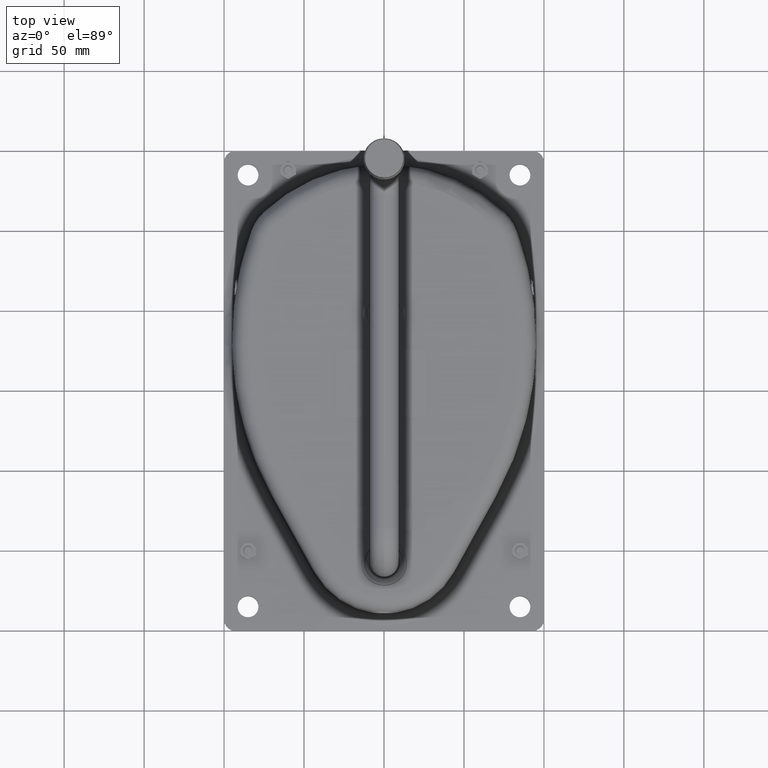
[diagram: clean part render]
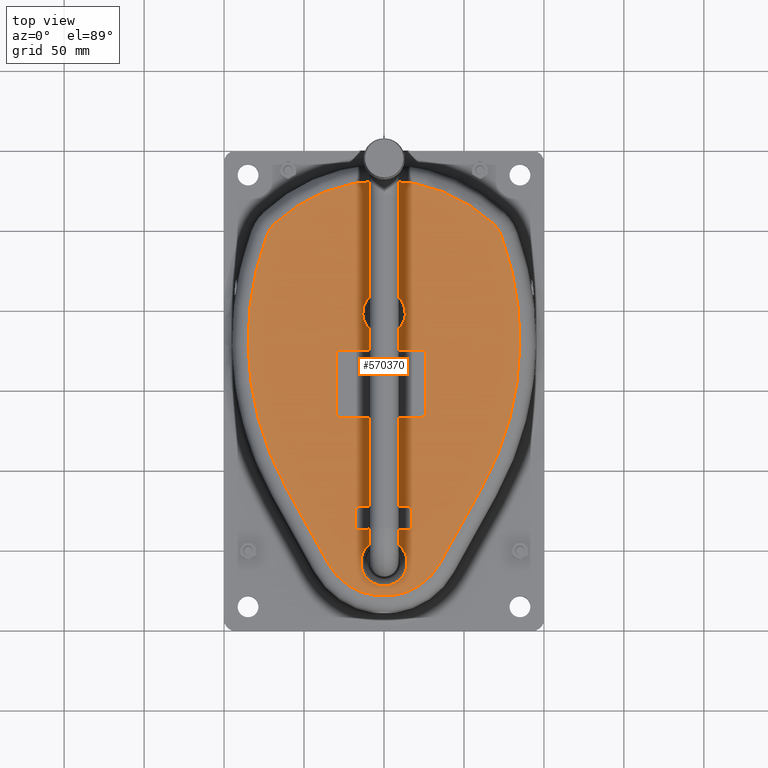
[diagram: same view with one face highlighted and labeled with its STEP entity id]
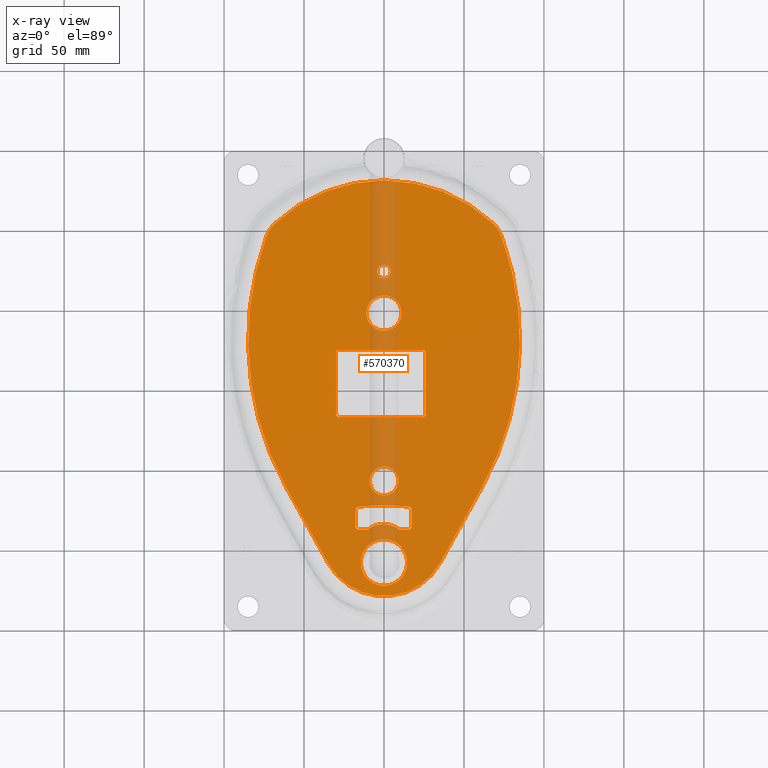
[diagram: x-ray of the same camera — body ghosted, the highlighted face saturated]
A machine part, top view. The second image highlights one B-rep face of the part: STEP entity #570370.
The next image is the same camera in x-ray: the body ghosted, the highlighted face saturated — about 8% of this face is hidden behind the body in this view.
In plain terms, the highlighted planar face has unit normal (0, 0, 1).
Its self-contained STEP definition (entity closure, byte-faithful):
#1810=CARTESIAN_POINT('',(1.84741111297626E-13,-2.8421709430404E-13,-10.
));
#1820=DIRECTION('',(0.,0.,1.));
#1830=DIRECTION('',(0.0174524064372835,0.999847695156391,0.));
#1840=AXIS2_PLACEMENT_3D('',#1810,#1820,#1830);
#1850=CIRCLE('',#1840,11.);
#1860=CARTESIAN_POINT('',(10.9983246467205,-0.191976470810405,-10.));
#1870=VERTEX_POINT('',#1860);
#1880=CARTESIAN_POINT('',(0.191976470810303,10.99832464672,-10.));
#1890=VERTEX_POINT('',#1880);
#1900=EDGE_CURVE('',#1870,#1890,#1850,.T.);
#2430=CARTESIAN_POINT('',(-0.191976470809935,-10.9983246467206,-10.));
#2440=VERTEX_POINT('',#2430);
#2470=EDGE_CURVE('',#2440,#1870,#1850,.T.);
#22490=CARTESIAN_POINT('',(1.83250267591495,104.984007991421,-10.));
#22500=DIRECTION('',(0.,0.,1.));
#22510=DIRECTION('',(0.0174524064372835,0.999847695156391,0.));
#22520=AXIS2_PLACEMENT_3D('',#22490,#22500,#22510);
#22530=CIRCLE('',#22520,9.);
#22540=CARTESIAN_POINT('',(10.8311319323225,104.826936333485,-10.));
#22550=VERTEX_POINT('',#22540);
#22560=CARTESIAN_POINT('',(1.9895743338505,113.982637247828,-10.));
#22570=VERTEX_POINT('',#22560);
#22580=EDGE_CURVE('',#22550,#22570,#22530,.T.);
#22810=CARTESIAN_POINT('',(1.6754310179794,95.9853787350133,-10.));
#22820=VERTEX_POINT('',#22810);
#22850=EDGE_CURVE('',#22820,#22550,#22530,.T.);
#28150=CARTESIAN_POINT('',(3.79559013704547,-26.0702128014249,-10.));
#28160=VERTEX_POINT('',#28150);
#28190=CARTESIAN_POINT('',(-0.453762567369196,-25.9960400740665,-10.));
#28200=DIRECTION('',(0.,-0.,-1.));
#28210=DIRECTION('',(0.999847695156391,-0.0174524064372835,0.));
#28220=AXIS2_PLACEMENT_3D('',#28190,#28200,#28210);
#28230=CIRCLE('',#28220,4.25);
#28240=CARTESIAN_POINT('',(-4.70311527178386,-25.921867346708,-10.));
#28250=VERTEX_POINT('',#28240);
#28260=EDGE_CURVE('',#28250,#28160,#28230,.T.);
#28490=CARTESIAN_POINT('',(2.46951551087579,141.478448864629,-10.));
#28500=VERTEX_POINT('',#28490);
#28530=CARTESIAN_POINT('',(2.7225754042164,155.976240444397,-10.));
#28540=DIRECTION('',(0.,0.,1.));
#28550=DIRECTION('',(0.0174524064372835,0.999847695156391,0.));
#28560=AXIS2_PLACEMENT_3D('',#28530,#28540,#28550);
#28570=CIRCLE('',#28560,14.5);
#28580=CARTESIAN_POINT('',(2.97563529755701,170.474032024164,-10.));
#28590=VERTEX_POINT('',#28580);
#28600=EDGE_CURVE('',#28500,#28590,#28570,.T.);
#42310=CARTESIAN_POINT('',(72.5701482000902,-49.5790844655635,-10.));
#42320=VERTEX_POINT('',#42310);
#42510=CARTESIAN_POINT('',(63.0928881244137,107.991579813231,-10.));
#42520=VERTEX_POINT('',#42510);
#42550=CARTESIAN_POINT('',(-104.687317081987,18.8299134935731,-10.));
#42560=DIRECTION('',(0.,-0.,-1.));
#42570=DIRECTION('',(0.999847695156391,-0.0174524064372835,0.));
#42580=AXIS2_PLACEMENT_3D('',#42550,#42560,#42570);
#42590=CIRCLE('',#42580,190.);
#42600=EDGE_CURVE('',#42520,#42320,#42590,.T.);
#42840=CARTESIAN_POINT('',(37.7131281464134,155.750011356353,-10.));
#42850=VERTEX_POINT('',#42840);
#42880=CARTESIAN_POINT('',(15.9238431743633,196.752056908134,-10.));
#42890=DIRECTION('',(-0.4692719279982,0.883053711612636,-0.));
#42900=VECTOR('',#42890,1.);
#42910=LINE('',#42880,#42900);
#42920=EDGE_CURVE('',#42520,#42850,#42910,.T.);
#51010=CARTESIAN_POINT('',(-32.2545573199754,156.971301849046,-10.));
#51020=VERTEX_POINT('',#51010);
#51110=CARTESIAN_POINT('',(-59.2856018580911,110.127704301693,-10.));
#51120=VERTEX_POINT('',#51110);
#51150=CARTESIAN_POINT('',(-9.04759503807331,197.187934983483,-10.));
#51160=DIRECTION('',(-0.499804190315523,-0.866138425047085,0.));
#51170=VECTOR('',#51160,1.);
#51180=LINE('',#51150,#51170);
#51190=EDGE_CURVE('',#51020,#51120,#51180,.T.);
#51440=CARTESIAN_POINT('',(-74.2562255214051,-47.0162205790802,-10.));
#51450=VERTEX_POINT('',#51440);
#51480=CARTESIAN_POINT('',(105.280698900855,15.1649081417436,-10.));
#51490=DIRECTION('',(0.,-0.,-1.));
#51500=DIRECTION('',(0.999847695156391,-0.0174524064372835,0.));
#51510=AXIS2_PLACEMENT_3D('',#51480,#51490,#51500);
#51520=CIRCLE('',#51510,190.);
#51530=EDGE_CURVE('',#51450,#51120,#51520,.T.);
#51680=CARTESIAN_POINT('',(-69.2711750998701,-54.8379009649985,-10.));
#51690=VERTEX_POINT('',#51680);
#51740=CARTESIAN_POINT('',(-55.3576018980093,-40.4708386084671,-10.));
#51750=DIRECTION('',(0.,-0.,-1.));
#51760=DIRECTION('',(0.999847695156391,-0.0174524064372835,0.));
#51770=AXIS2_PLACEMENT_3D('',#51740,#51750,#51760);
#51780=CIRCLE('',#51770,20.);
#51790=EDGE_CURVE('',#51690,#51450,#51780,.T.);
#52120=CARTESIAN_POINT('',(67.3151618277441,-57.2220243443774,-10.));
#52130=VERTEX_POINT('',#52120);
#52160=CARTESIAN_POINT('',(0.296690909434005,16.9974108176584,-10.));
#52170=DIRECTION('',(0.,-0.,-1.));
#52180=DIRECTION('',(0.999847695156391,-0.0174524064372835,0.));
#52190=AXIS2_PLACEMENT_3D('',#52160,#52170,#52180);
#52200=CIRCLE('',#52190,100.);
#52210=EDGE_CURVE('',#52130,#51690,#52200,.T.);
#53810=CARTESIAN_POINT('',(2.39097968190802,136.979134236425,-10.));
#53820=DIRECTION('',(0.,-0.,-1.));
#53830=DIRECTION('',(0.999847695156391,-0.0174524064372835,0.));
#53840=AXIS2_PLACEMENT_3D('',#53810,#53820,#53830);
#53850=CIRCLE('',#53840,40.);
#53860=EDGE_CURVE('',#51020,#42850,#53850,.T.);
#70370=CARTESIAN_POINT('',(-28.8959292491434,63.5139769879716,-10.));
#70380=VERTEX_POINT('',#70370);
#70410=CARTESIAN_POINT('',(-30.0045698413178,0.,-10.));
#70420=DIRECTION('',(0.0174524064372841,0.999847695156391,0.));
#70430=VECTOR('',#70420,1.);
#70440=LINE('',#70410,#70430);
#70450=CARTESIAN_POINT('',(-29.5591206937602,25.5197645720287,-10.));
#70460=VERTEX_POINT('',#70450);
#70470=EDGE_CURVE('',#70460,#70380,#70440,.T.);
#249020=CARTESIAN_POINT('',(26.4323502349978,24.5424298115408,-10.));
#249030=VERTEX_POINT('',#249020);
#249060=CARTESIAN_POINT('',(26.0039605291411,0.,-10.));
#249070=DIRECTION('',(0.0174524064372847,0.999847695156391,0.));
#249080=VECTOR('',#249070,1.);
#249090=LINE('',#249060,#249080);
#249100=CARTESIAN_POINT('',(27.0955416796146,62.5366422274836,-10.));
#249110=VERTEX_POINT('',#249100);
#249120=EDGE_CURVE('',#249030,#249110,#249090,.T.);
#249280=CARTESIAN_POINT('',(25.0958462893018,62.5715470403582,-10.));
#249290=DIRECTION('',(-1.85096894965842E-18,-1.06041940105652E-16,-1.));
#249300=DIRECTION('',(-0.0174524064372847,-0.999847695156391,
1.0605809326696E-16));
#249310=AXIS2_PLACEMENT_3D('',#249280,#249290,#249300);
#249320=CIRCLE('',#249310,2.);
#249330=CARTESIAN_POINT('',(25.1307511021764,64.571242430671,-10.));
#249340=VERTEX_POINT('',#249330);
#249350=EDGE_CURVE('',#249340,#249110,#249320,.T.);
#249550=CARTESIAN_POINT('',(0.,65.0099013228544,-10.));
#249560=DIRECTION('',(0.999847695156391,-0.0174524064372847,0.));
#249570=VECTOR('',#249560,1.);
#249580=LINE('',#249550,#249570);
#249590=CARTESIAN_POINT('',(-26.861329045956,65.4787675654098,-10.));
#249600=VERTEX_POINT('',#249590);
#249610=EDGE_CURVE('',#249600,#249340,#249580,.T.);
#249770=CARTESIAN_POINT('',(-26.8962338588306,63.479072175097,-10.));
#249780=DIRECTION('',(1.85096894965842E-18,1.06041940105652E-16,1.));
#249790=DIRECTION('',(0.0174524064372847,0.999847695156391,
-1.0605809326696E-16));
#249800=AXIS2_PLACEMENT_3D('',#249770,#249780,#249790);
#249810=CIRCLE('',#249800,2.);
#249820=EDGE_CURVE('',#249600,#70380,#249810,.T.);
#250000=CARTESIAN_POINT('',(24.3977500318104,22.5776392341026,-10.));
#250010=VERTEX_POINT('',#250000);
#250040=CARTESIAN_POINT('',(24.432654844685,24.5773346244154,-10.));
#250050=DIRECTION('',(1.85096894965842E-18,1.06041940105652E-16,1.));
#250060=DIRECTION('',(0.0174524064372847,0.999847695156391,
-1.0605809326696E-16));
#250070=AXIS2_PLACEMENT_3D('',#250040,#250050,#250060);
#250080=CIRCLE('',#250070,2.);
#250090=EDGE_CURVE('',#250010,#249030,#250080,.T.);
#250250=CARTESIAN_POINT('',(-27.5943301163219,23.4851643688414,-10.));
#250260=VERTEX_POINT('',#250250);
#250290=CARTESIAN_POINT('',(0.,23.0035035450103,-10.));
#250300=DIRECTION('',(-0.999847695156391,0.0174524064372834,0.));
#250310=VECTOR('',#250300,1.);
#250320=LINE('',#250290,#250310);
#250330=EDGE_CURVE('',#250010,#250260,#250320,.T.);
#333090=CARTESIAN_POINT('',(-27.5594253034474,25.4848597591541,-10.));
#333100=DIRECTION('',(1.85096894965842E-18,1.06041940105652E-16,1.));
#333110=DIRECTION('',(0.0174524064372847,0.999847695156391,
-1.0605809326696E-16));
#333120=AXIS2_PLACEMENT_3D('',#333090,#333100,#333110);
#333130=CIRCLE('',#333120,2.);
#333140=EDGE_CURVE('',#70460,#250260,#333130,.T.);
#333390=CARTESIAN_POINT('',(17.6100575303226,135.05964431283,-10.));
#333400=VERTEX_POINT('',#333390);
#333430=CARTESIAN_POINT('',(0.,135.367029010411,-10.));
#333440=DIRECTION('',(-0.999847695156391,0.0174524064372841,0.));
#333450=VECTOR('',#333440,1.);
#333460=LINE('',#333430,#333450);
#333470=CARTESIAN_POINT('',(12.6640866634423,135.145976555444,-10.));
#333480=VERTEX_POINT('',#333470);
#333490=EDGE_CURVE('',#333400,#333480,#333460,.T.);
#333780=CARTESIAN_POINT('',(19.5748481077608,133.025044109643,-10.));
#333790=VERTEX_POINT('',#333780);
#333820=CARTESIAN_POINT('',(17.5751527174481,133.059948922517,-10.));
#333830=DIRECTION('',(0.,-0.,-1.));
#333840=DIRECTION('',(0.999847695156391,-0.0174524064372835,0.));
#333850=AXIS2_PLACEMENT_3D('',#333820,#333830,#333840);
#333860=CIRCLE('',#333850,2.);
#333870=EDGE_CURVE('',#333400,#333790,#333860,.T.);
#334100=CARTESIAN_POINT('',(19.3948443448666,122.712635440041,-10.));
#334110=VERTEX_POINT('',#334100);
#334140=CARTESIAN_POINT('',(17.252887325748,0.,-10.));
#334150=DIRECTION('',(0.0174524064372835,0.999847695156391,0.));
#334160=VECTOR('',#334150,1.);
#334170=LINE('',#334140,#334160);
#334180=EDGE_CURVE('',#334110,#333790,#334170,.T.);
#334420=CARTESIAN_POINT('',(17.5501901616735,120.753558752476,-10.));
#334430=VERTEX_POINT('',#334420);
#334460=CARTESIAN_POINT('',(17.3951489545539,122.747540252915,-10.));
#334470=DIRECTION('',(0.,-0.,-1.));
#334480=DIRECTION('',(0.999847695156391,-0.0174524064372835,0.));
#334490=AXIS2_PLACEMENT_3D('',#334460,#334470,#334480);
#334500=CIRCLE('',#334490,2.);
#334510=EDGE_CURVE('',#334110,#334430,#334500,.T.);
#334750=CARTESIAN_POINT('',(1.85062439538235,120.331996419287,-10.));
#334760=VERTEX_POINT('',#334750);
#334790=CARTESIAN_POINT('',(5.28873967588159,284.83939569868,-10.));
#334800=DIRECTION('',(0.,-0.,-1.));
#334810=DIRECTION('',(0.999847695156391,-0.0174524064372835,0.));
#334820=AXIS2_PLACEMENT_3D('',#334790,#334800,#334810);
#334830=CIRCLE('',#334820,164.543322727942);
#334840=EDGE_CURVE('',#334430,#334760,#334830,.T.);
#335080=CARTESIAN_POINT('',(-13.826189852675,121.314152174797,-10.));
#335090=VERTEX_POINT('',#335080);
#335120=CARTESIAN_POINT('',(4.28886255199527,284.855162134308,-10.));
#335130=DIRECTION('',(0.,-0.,-1.));
#335140=DIRECTION('',(0.999847695156391,-0.0174524064372835,0.));
#335150=AXIS2_PLACEMENT_3D('',#335120,#335130,#335140);
#335160=CIRCLE('',#335150,164.541232103691);
#335170=EDGE_CURVE('',#334760,#335090,#335160,.T.);
#335410=CARTESIAN_POINT('',(-15.5996025186405,123.336214789323,-10.));
#335420=VERTEX_POINT('',#335410);
#335450=CARTESIAN_POINT('',(-13.5999071283277,123.301309976448,-10.));
#335460=DIRECTION('',(0.,-0.,-1.));
#335470=DIRECTION('',(0.999847695156391,-0.0174524064372835,0.));
#335480=AXIS2_PLACEMENT_3D('',#335450,#335460,#335470);
#335490=CIRCLE('',#335480,1.99999999999999);
#335500=EDGE_CURVE('',#335090,#335420,#335490,.T.);
#335730=CARTESIAN_POINT('',(-15.4198212227128,133.635878334948,-10.));
#335740=VERTEX_POINT('',#335730);
#335770=CARTESIAN_POINT('',(-17.7524441557887,0.,-10.));
#335780=DIRECTION('',(-0.0174524064372835,-0.999847695156391,0.));
#335790=VECTOR('',#335780,1.);
#335800=LINE('',#335770,#335790);
#335810=EDGE_CURVE('',#335740,#335420,#335800,.T.);
#336050=CARTESIAN_POINT('',(-13.3852210195255,135.600668912386,-10.));
#336060=VERTEX_POINT('',#336050);
#336090=CARTESIAN_POINT('',(-13.4201258324001,133.600973522073,-10.));
#336100=DIRECTION('',(0.,-0.,-1.));
#336110=DIRECTION('',(0.999847695156391,-0.0174524064372835,0.));
#336120=AXIS2_PLACEMENT_3D('',#336090,#336100,#336110);
#336130=CIRCLE('',#336120,2.);
#336140=EDGE_CURVE('',#335740,#336060,#336130,.T.);
#336370=CARTESIAN_POINT('',(-8.4392501526449,135.514336669771,-10.));
#336380=VERTEX_POINT('',#336370);
#336410=CARTESIAN_POINT('',(0.,135.367029010411,-10.));
#336420=DIRECTION('',(-0.999847695156391,0.0174524064372822,0.));
#336430=VECTOR('',#336420,1.);
#336440=LINE('',#336410,#336430);
#336450=EDGE_CURVE('',#336380,#336060,#336440,.T.);
#336690=CARTESIAN_POINT('',(-7.27347101027392,135.114128084536,-10.));
#336700=VERTEX_POINT('',#336690);
#336730=CARTESIAN_POINT('',(-8.47415496551947,133.514641279458,-10.));
#336740=DIRECTION('',(0.,-0.,-1.));
#336750=DIRECTION('',(0.999847695156391,-0.0174524064372835,0.));
#336760=AXIS2_PLACEMENT_3D('',#336730,#336740,#336750);
#336770=CIRCLE('',#336760,2.);
#336780=EDGE_CURVE('',#336380,#336700,#336770,.T.);
#337000=CARTESIAN_POINT('',(11.4850506040258,134.786696871801,-10.));
#337010=VERTEX_POINT('',#337000);
#337040=CARTESIAN_POINT('',(2.33200063169043,147.910022525153,-10.));
#337050=DIRECTION('',(0.,-0.,-1.));
#337060=DIRECTION('',(0.999847695156391,-0.0174524064372835,0.));
#337070=AXIS2_PLACEMENT_3D('',#337040,#337050,#337060);
#337080=CIRCLE('',#337070,16.);
#337090=EDGE_CURVE('',#337010,#336700,#337080,.T.);
#337170=CARTESIAN_POINT('',(12.6291818505677,133.146281165132,-10.));
#337180=DIRECTION('',(0.,-0.,-1.));
#337190=DIRECTION('',(0.999847695156391,-0.0174524064372835,0.));
#337200=AXIS2_PLACEMENT_3D('',#337170,#337180,#337190);
#337210=CIRCLE('',#337200,2.00000000000002);
#337220=EDGE_CURVE('',#337010,#333480,#337210,.T.);
#490360=EDGE_CURVE('',#28590,#28500,#28570,.T.);
#506540=EDGE_CURVE('',#28160,#28250,#28230,.T.);
#506650=EDGE_CURVE('',#1890,#2440,#1850,.T.);
#509010=EDGE_CURVE('',#22570,#22820,#22530,.T.);
#569440=CARTESIAN_POINT('',(53.9114676440821,-42.3781373119702,-10.));
#569450=DIRECTION('',(0.,-0.,-1.));
#569460=DIRECTION('',(0.999847695156391,-0.0174524064372835,0.));
#569470=AXIS2_PLACEMENT_3D('',#569440,#569450,#569460);
#569480=CIRCLE('',#569470,20.);
#569490=EDGE_CURVE('',#42320,#52130,#569480,.T.);
#569790=CARTESIAN_POINT('',(-96.5466454474941,198.715236589537,-10.));
#569800=DIRECTION('',(0.,-0.,-1.));
#569810=DIRECTION('',(0.999847695156391,-0.0174524064372835,0.));
#569820=AXIS2_PLACEMENT_3D('',#569790,#569800,#569810);
#569830=PLANE('',#569820);
#569840=ORIENTED_EDGE('',*,*,#509010,.T.);
#569850=ORIENTED_EDGE('',*,*,#22580,.T.);
#569860=ORIENTED_EDGE('',*,*,#22850,.T.);
#569870=EDGE_LOOP('',(#569860,#569850,#569840));
#569880=FACE_BOUND('',#569870,.T.);
#569890=ORIENTED_EDGE('',*,*,#506540,.F.);
#569900=ORIENTED_EDGE('',*,*,#28260,.F.);
#569910=EDGE_LOOP('',(#569900,#569890));
#569920=FACE_BOUND('',#569910,.T.);
#569930=ORIENTED_EDGE('',*,*,#490360,.T.);
#569940=ORIENTED_EDGE('',*,*,#28600,.T.);
#569950=EDGE_LOOP('',(#569940,#569930));
#569960=FACE_BOUND('',#569950,.T.);
#569970=ORIENTED_EDGE('',*,*,#70470,.F.);
#569980=ORIENTED_EDGE('',*,*,#249820,.T.);
#569990=ORIENTED_EDGE('',*,*,#249610,.F.);
#570000=ORIENTED_EDGE('',*,*,#249350,.F.);
#570010=ORIENTED_EDGE('',*,*,#249120,.T.);
#570020=ORIENTED_EDGE('',*,*,#250090,.T.);
#570030=ORIENTED_EDGE('',*,*,#250330,.F.);
#570040=ORIENTED_EDGE('',*,*,#333140,.T.);
#570050=EDGE_LOOP('',(#570040,#570030,#570020,#570010,#570000,#569990,
#569980,#569970));
#570060=FACE_BOUND('',#570050,.T.);
#570070=ORIENTED_EDGE('',*,*,#333870,.F.);
#570080=ORIENTED_EDGE('',*,*,#334180,.T.);
#570090=ORIENTED_EDGE('',*,*,#334510,.F.);
#570100=ORIENTED_EDGE('',*,*,#334840,.F.);
#570110=ORIENTED_EDGE('',*,*,#335170,.F.);
#570120=ORIENTED_EDGE('',*,*,#335500,.F.);
#570130=ORIENTED_EDGE('',*,*,#335810,.T.);
#570140=ORIENTED_EDGE('',*,*,#336140,.F.);
#570150=ORIENTED_EDGE('',*,*,#336450,.T.);
#570160=ORIENTED_EDGE('',*,*,#336780,.F.);
#570170=ORIENTED_EDGE('',*,*,#337090,.T.);
#570180=ORIENTED_EDGE('',*,*,#337220,.F.);
#570190=ORIENTED_EDGE('',*,*,#333490,.T.);
#570200=EDGE_LOOP('',(#570190,#570180,#570170,#570160,#570150,#570140,
#570130,#570120,#570110,#570100,#570090,#570080,#570070));
#570210=FACE_BOUND('',#570200,.T.);
#570220=ORIENTED_EDGE('',*,*,#506650,.T.);
#570230=ORIENTED_EDGE('',*,*,#1900,.T.);
#570240=ORIENTED_EDGE('',*,*,#2470,.T.);
#570250=EDGE_LOOP('',(#570240,#570230,#570220));
#570260=FACE_BOUND('',#570250,.T.);
#570270=ORIENTED_EDGE('',*,*,#53860,.T.);
#570280=ORIENTED_EDGE('',*,*,#51190,.F.);
#570290=ORIENTED_EDGE('',*,*,#51530,.T.);
#570300=ORIENTED_EDGE('',*,*,#51790,.T.);
#570310=ORIENTED_EDGE('',*,*,#52210,.T.);
#570320=ORIENTED_EDGE('',*,*,#569490,.T.);
#570330=ORIENTED_EDGE('',*,*,#42600,.T.);
#570340=ORIENTED_EDGE('',*,*,#42920,.F.);
#570350=EDGE_LOOP('',(#570340,#570330,#570320,#570310,#570300,#570290,
#570280,#570270));
#570360=FACE_OUTER_BOUND('',#570350,.T.);
#570370=ADVANCED_FACE('',(#569880,#569920,#569960,#570060,#570210,
#570260,#570360),#569830,.T.);